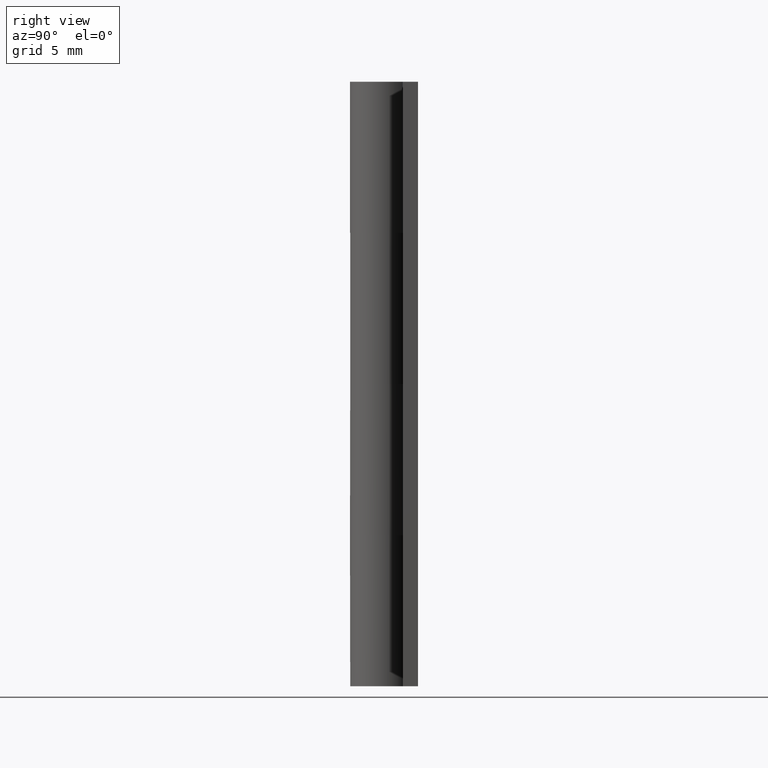
[diagram: clean part render]
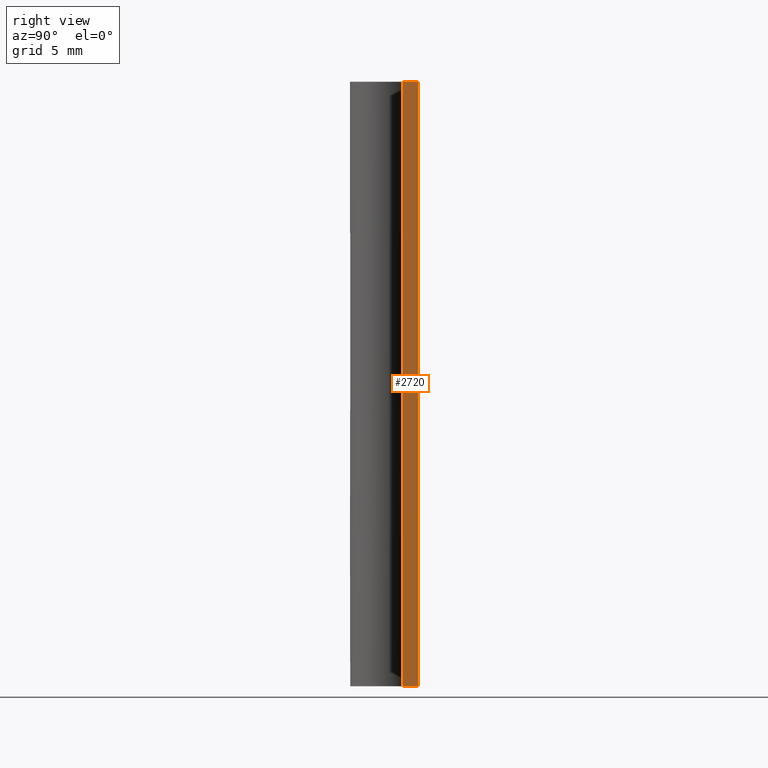
[diagram: same view with one face highlighted and labeled with its STEP entity id]
A machine part, right view. The second image highlights one B-rep face of the part: STEP entity #2720.
In plain terms, the highlighted face is a freeform B-spline surface patch.
Its self-contained STEP definition (entity closure, byte-faithful):
#2671=CARTESIAN_POINT('',(10.750000000000000,0.999999999999986,32.0));
#2672=VERTEX_POINT('',#2671);
#2678=CARTESIAN_POINT('',(10.750000000000000,1.799999000000000,32.0));
#2679=VERTEX_POINT('',#2678);
#2680=CARTESIAN_POINT('',(10.750000000000000,1.799999000000000,32.0));
#2681=CARTESIAN_POINT('',(10.750000000000000,0.999999999999986,32.0));
#2682=QUASI_UNIFORM_CURVE('',1,(#2680,#2681),.UNSPECIFIED.,.F.,.U.);
#2683=EDGE_CURVE('',#2679,#2672,#2682,.T.);
#2693=CARTESIAN_POINT('',(10.750000000000000,0.960040051500538,-1.598399937977790));
#2694=CARTESIAN_POINT('',(10.750000000000000,0.960040051500538,33.598400796284679));
#2695=CARTESIAN_POINT('',(10.750000000000000,1.839958969957093,-1.598399937977790));
#2696=CARTESIAN_POINT('',(10.750000000000000,1.839958969957093,33.598400796284679));
#2697=B_SPLINE_SURFACE_WITH_KNOTS('',1,1,((#2693,#2695),(#2694,#2696)),.UNSPECIFIED.,.F.,.F.,.U.,(2,2),(2,2),(0.0,35.196800734262467),(0.041708334948495,0.958291687403247),.UNSPECIFIED.);
#2698=ORIENTED_EDGE('',*,*,#2683,.T.);
#2699=CARTESIAN_POINT('',(10.750000000000000,0.999999999999986,0.0));
#2700=VERTEX_POINT('',#2699);
#2701=CARTESIAN_POINT('',(10.750000000000000,0.999999999999986,0.0));
#2702=CARTESIAN_POINT('',(10.750000000000000,0.999999999999986,32.0));
#2703=QUASI_UNIFORM_CURVE('',1,(#2701,#2702),.UNSPECIFIED.,.F.,.U.);
#2704=EDGE_CURVE('',#2700,#2672,#2703,.T.);
#2705=ORIENTED_EDGE('',*,*,#2704,.F.);
#2706=CARTESIAN_POINT('',(10.750000000000000,1.799999000000000,0.0));
#2707=VERTEX_POINT('',#2706);
#2708=CARTESIAN_POINT('',(10.750000000000000,1.799999000000000,0.0));
#2709=CARTESIAN_POINT('',(10.750000000000000,0.999999999999986,0.0));
#2710=QUASI_UNIFORM_CURVE('',1,(#2708,#2709),.UNSPECIFIED.,.F.,.U.);
#2711=EDGE_CURVE('',#2707,#2700,#2710,.T.);
#2712=ORIENTED_EDGE('',*,*,#2711,.F.);
#2713=CARTESIAN_POINT('',(10.750000000000000,1.799999000000000,0.0));
#2714=CARTESIAN_POINT('',(10.750000000000000,1.799999000000000,32.0));
#2715=QUASI_UNIFORM_CURVE('',1,(#2713,#2714),.UNSPECIFIED.,.F.,.U.);
#2716=EDGE_CURVE('',#2707,#2679,#2715,.T.);
#2717=ORIENTED_EDGE('',*,*,#2716,.T.);
#2718=EDGE_LOOP('',(#2698,#2705,#2712,#2717));
#2719=FACE_OUTER_BOUND('',#2718,.T.);
#2720=ADVANCED_FACE('',(#2719),#2697,.F.);